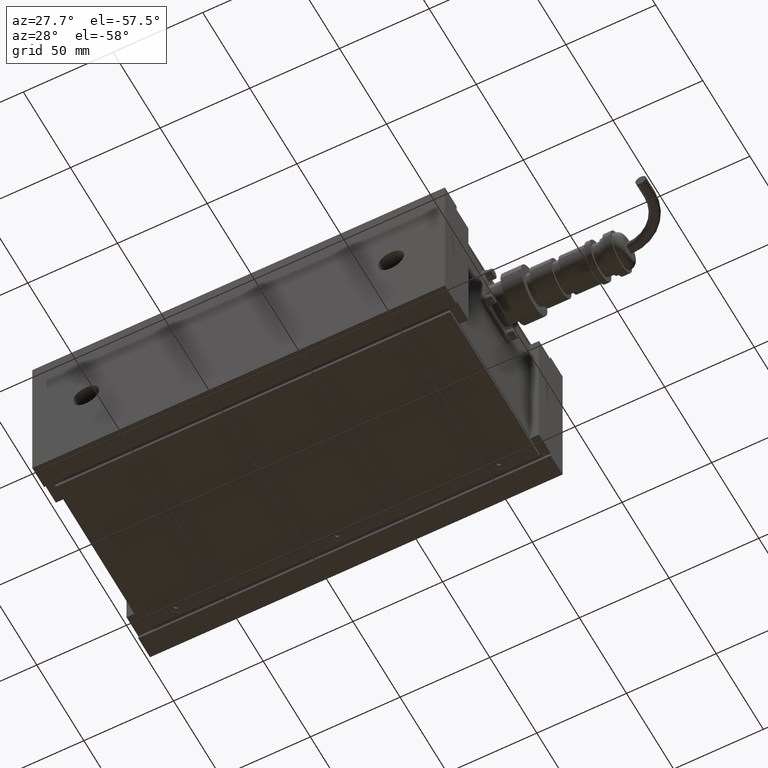
[diagram: clean part render]
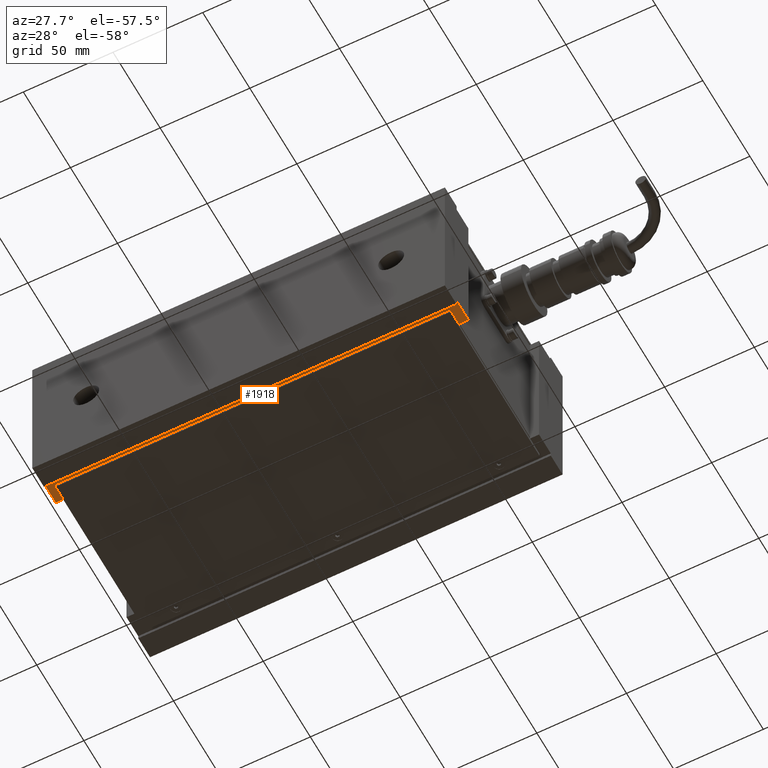
[diagram: same view with one face highlighted and labeled with its STEP entity id]
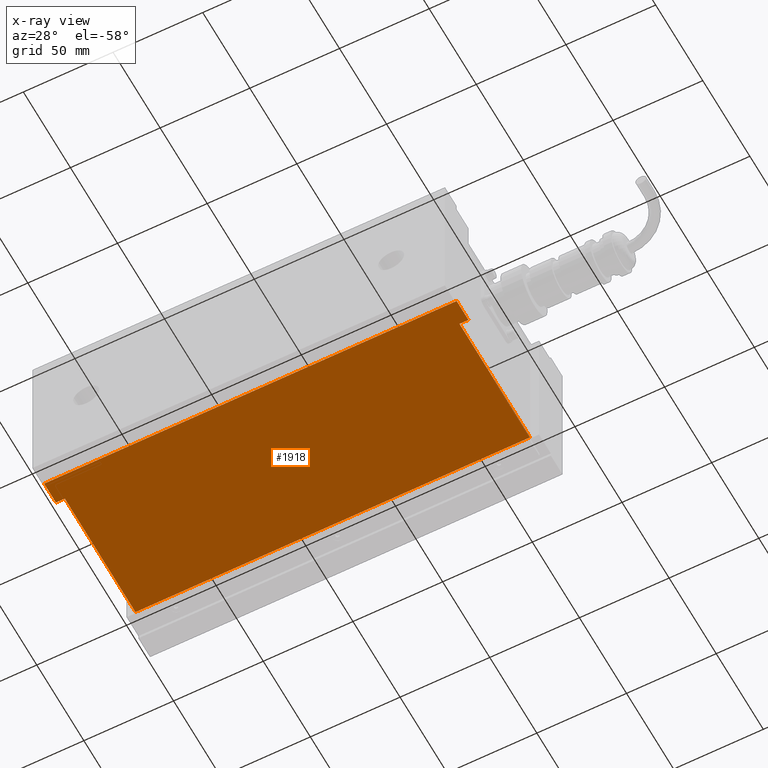
[diagram: x-ray of the same camera — body ghosted, the highlighted face saturated]
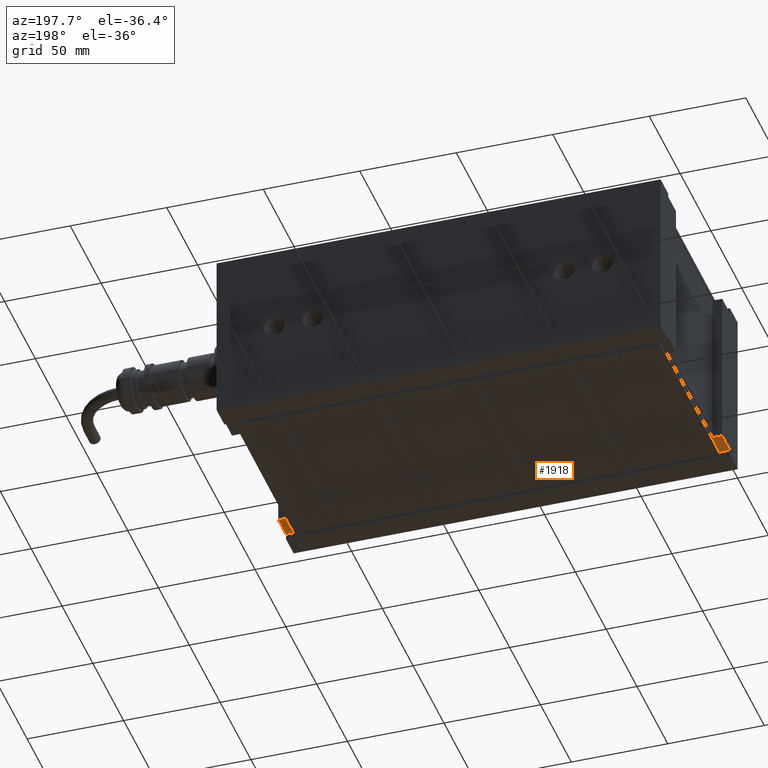
[diagram: same view with one face highlighted and labeled with its STEP entity id]
A machine part, auxiliary view. The second image highlights one B-rep face of the part: STEP entity #1918.
The next image is the same camera in x-ray: the body ghosted, the highlighted face saturated — about 0% of this face is hidden behind the body in this view.
A second angle (auxiliary view) of the same face is appended — the face is thin or edge-on in the first view.
In plain terms, the highlighted planar face has unit normal (-0, 0, 1).
Its self-contained STEP definition (entity closure, byte-faithful):
#1847=CARTESIAN_POINT('',(9.624497E-014,-6.249999999999888,-42.0));
#1848=DIRECTION('',(0.0,0.0,1.0));
#1849=DIRECTION('',(1.0,0.0,0.0));
#1850=AXIS2_PLACEMENT_3D('',#1847,#1848,#1849);
#1851=PLANE('',#1850);
#1852=CARTESIAN_POINT('',(-110.0,-37.500000000000000,-42.0));
#1853=VERTEX_POINT('',#1852);
#1854=CARTESIAN_POINT('',(-114.999999999999890,-37.500000000000000,-42.0));
#1855=VERTEX_POINT('',#1854);
#1856=CARTESIAN_POINT('',(-110.0,-37.500000000000000,-42.0));
#1857=DIRECTION('',(-1.0,0.0,0.0));
#1858=VECTOR('',#1857,4.999999999999886);
#1859=LINE('',#1856,#1858);
#1860=EDGE_CURVE('',#1853,#1855,#1859,.T.);
#1861=ORIENTED_EDGE('',*,*,#1860,.F.);
#1862=CARTESIAN_POINT('',(-110.0,37.500000000000128,-42.0));
#1863=VERTEX_POINT('',#1862);
#1864=CARTESIAN_POINT('',(-110.0,37.500000000000128,-42.0));
#1865=DIRECTION('',(0.0,-1.0,0.0));
#1866=VECTOR('',#1865,75.000000000000128);
#1867=LINE('',#1864,#1866);
#1868=EDGE_CURVE('',#1863,#1853,#1867,.T.);
#1869=ORIENTED_EDGE('',*,*,#1868,.F.);
#1870=CARTESIAN_POINT('',(110.0,37.500000000000099,-42.0));
#1871=VERTEX_POINT('',#1870);
#1872=CARTESIAN_POINT('',(-110.0,37.500000000000128,-42.0));
#1873=DIRECTION('',(1.0,0.0,0.0));
#1874=VECTOR('',#1873,220.0);
#1875=LINE('',#1872,#1874);
#1876=EDGE_CURVE('',#1863,#1871,#1875,.T.);
#1877=ORIENTED_EDGE('',*,*,#1876,.T.);
#1878=CARTESIAN_POINT('',(110.0,-37.500000000000057,-42.0));
#1879=VERTEX_POINT('',#1878);
#1880=CARTESIAN_POINT('',(110.0,-37.500000000000057,-42.0));
#1881=DIRECTION('',(0.0,1.0,0.0));
#1882=VECTOR('',#1881,75.000000000000156);
#1883=LINE('',#1880,#1882);
#1884=EDGE_CURVE('',#1879,#1871,#1883,.T.);
#1885=ORIENTED_EDGE('',*,*,#1884,.F.);
#1886=CARTESIAN_POINT('',(115.000000000000110,-37.500000000000057,-42.0));
#1887=VERTEX_POINT('',#1886);
#1888=CARTESIAN_POINT('',(115.000000000000110,-37.500000000000057,-42.0));
#1889=DIRECTION('',(-1.0,0.0,0.0));
#1890=VECTOR('',#1889,5.000000000000114);
#1891=LINE('',#1888,#1890);
#1892=EDGE_CURVE('',#1887,#1879,#1891,.T.);
#1893=ORIENTED_EDGE('',*,*,#1892,.F.);
#1894=CARTESIAN_POINT('',(115.000000000000110,-49.999999999999886,-42.0));
#1895=VERTEX_POINT('',#1894);
#1896=CARTESIAN_POINT('',(115.000000000000110,-49.999999999999886,-42.0));
#1897=DIRECTION('',(0.0,1.0,0.0));
#1898=VECTOR('',#1897,12.499999999999829);
#1899=LINE('',#1896,#1898);
#1900=EDGE_CURVE('',#1895,#1887,#1899,.T.);
#1901=ORIENTED_EDGE('',*,*,#1900,.F.);
#1902=CARTESIAN_POINT('',(-114.999999999999890,-49.999999999999886,-42.0));
#1903=VERTEX_POINT('',#1902);
#1904=CARTESIAN_POINT('',(115.000000000000110,-49.999999999999886,-42.0));
#1905=DIRECTION('',(-1.0,0.0,0.0));
#1906=VECTOR('',#1905,230.0);
#1907=LINE('',#1904,#1906);
#1908=EDGE_CURVE('',#1895,#1903,#1907,.T.);
#1909=ORIENTED_EDGE('',*,*,#1908,.T.);
#1910=CARTESIAN_POINT('',(-114.999999999999890,-37.500000000000000,-42.0));
#1911=DIRECTION('',(0.0,-1.0,0.0));
#1912=VECTOR('',#1911,12.499999999999886);
#1913=LINE('',#1910,#1912);
#1914=EDGE_CURVE('',#1855,#1903,#1913,.T.);
#1915=ORIENTED_EDGE('',*,*,#1914,.F.);
#1916=EDGE_LOOP('',(#1861,#1869,#1877,#1885,#1893,#1901,#1909,#1915));
#1917=FACE_OUTER_BOUND('',#1916,.T.);
#1918=ADVANCED_FACE('',(#1917),#1851,.F.);